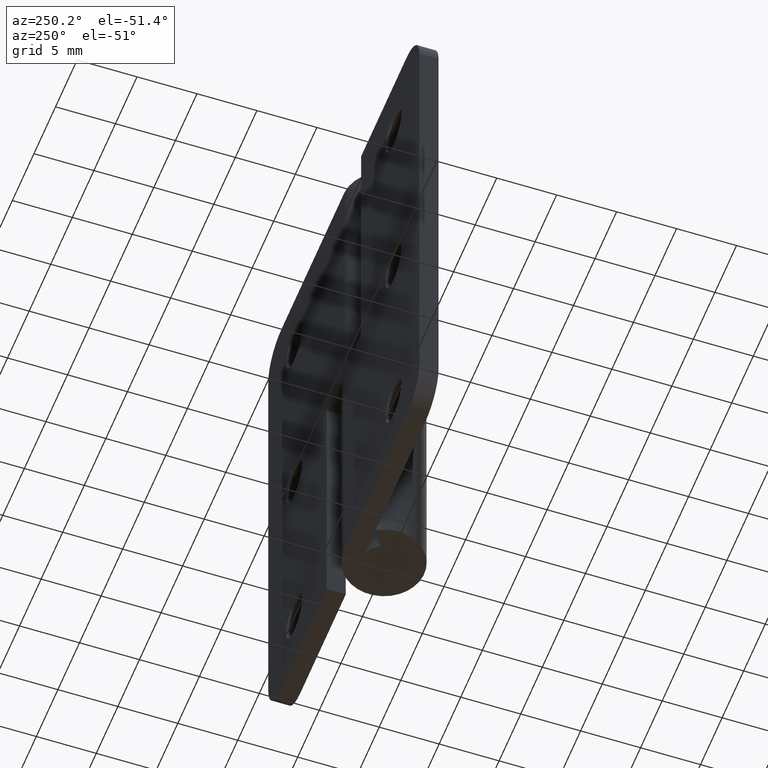
[diagram: clean part render]
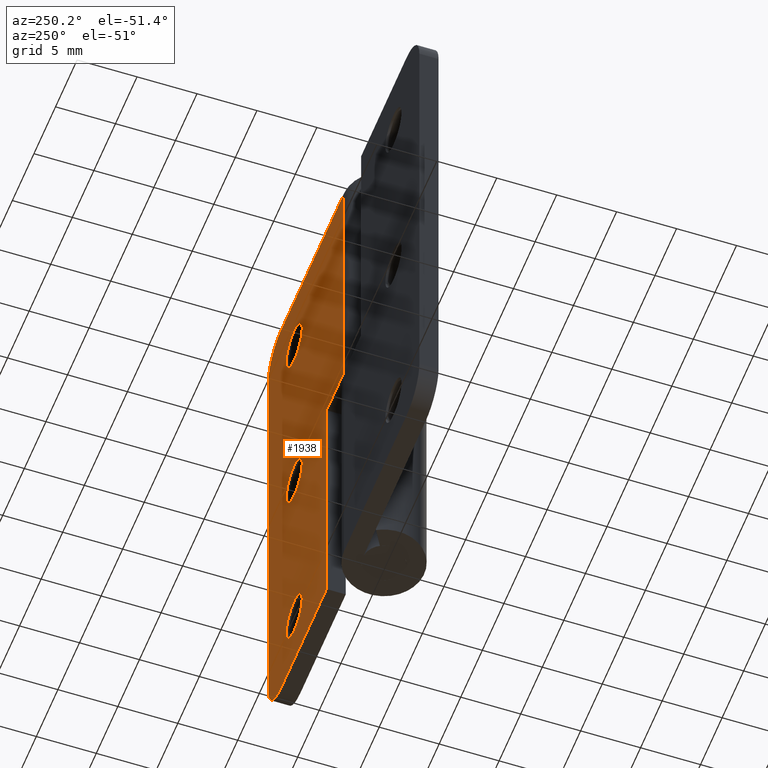
[diagram: same view with one face highlighted and labeled with its STEP entity id]
A machine part, auxiliary view. The second image highlights one B-rep face of the part: STEP entity #1938.
In plain terms, the highlighted face is a freeform B-spline surface patch.
Its self-contained STEP definition (entity closure, byte-faithful):
#676=CARTESIAN_POINT('',(13.337067623767419,3.349998000000000,39.718371334160153));
#677=VERTEX_POINT('',#676);
#683=CARTESIAN_POINT('',(11.500000000000000,3.349998000000000,37.650008000000007));
#684=VERTEX_POINT('',#683);
#685=CARTESIAN_POINT('',(13.337067623767418,3.349998000000000,39.718371334160153));
#686=CARTESIAN_POINT('',(13.350000000000007,3.349998000000000,39.609572621401661));
#687=CARTESIAN_POINT('',(13.350000000000000,3.349998000000000,39.500008000000001));
#688=CARTESIAN_POINT('',(13.350000000000000,3.349998000000000,37.650008000000007));
#689=CARTESIAN_POINT('',(11.500000000000000,3.349998000000000,37.650008000000007));
#697=(BOUNDED_CURVE()B_SPLINE_CURVE(2,(#685,#686,#687,#688,#689),.UNSPECIFIED.,.F.,.U.)B_SPLINE_CURVE_WITH_KNOTS((3,2,3),(0.229562473507338,0.250000000000000,0.500000000000000),.UNSPECIFIED.)CURVE()GEOMETRIC_REPRESENTATION_ITEM()RATIONAL_B_SPLINE_CURVE((0.956026754171605,0.976055948323916,1.0,0.707106781186548,1.0))REPRESENTATION_ITEM(''));
#698=EDGE_CURVE('',#677,#684,#697,.T.);
#700=CARTESIAN_POINT('',(9.653450622924266,3.349998000000000,39.387068201783343));
#701=VERTEX_POINT('',#700);
#702=CARTESIAN_POINT('',(11.500000000000000,3.349998000000000,37.650008000000007));
#703=CARTESIAN_POINT('',(9.759693776370208,3.349997999999999,37.650008000000014));
#704=CARTESIAN_POINT('',(9.653450622924266,3.349998000000000,39.387068201783336));
#712=(BOUNDED_CURVE()B_SPLINE_CURVE(2,(#702,#703,#704),.UNSPECIFIED.,.F.,.U.)B_SPLINE_CURVE_WITH_KNOTS((3,3),(0.500000000000000,0.739332962227545),.UNSPECIFIED.)CURVE()GEOMETRIC_REPRESENTATION_ITEM()RATIONAL_B_SPLINE_CURVE((1.0,0.719603993300063,0.976072041642291))REPRESENTATION_ITEM(''));
#713=EDGE_CURVE('',#684,#701,#712,.T.);
#747=CARTESIAN_POINT('',(11.500000000000000,3.349998000000000,41.350008000000003));
#748=VERTEX_POINT('',#747);
#749=CARTESIAN_POINT('',(9.653450622924266,3.349998000000000,39.387068201783336));
#750=CARTESIAN_POINT('',(9.649999999999999,3.349998000000001,39.443485387820218));
#751=CARTESIAN_POINT('',(9.649999999999999,3.349998000000000,39.500008000000001));
#752=CARTESIAN_POINT('',(9.650000000000000,3.349998000000000,41.350007999999995));
#753=CARTESIAN_POINT('',(11.500000000000000,3.349998000000000,41.350008000000003));
#761=(BOUNDED_CURVE()B_SPLINE_CURVE(2,(#749,#750,#751,#752,#753),.UNSPECIFIED.,.F.,.U.)B_SPLINE_CURVE_WITH_KNOTS((3,2,3),(0.739332962227545,0.750000000000000,1.0),.UNSPECIFIED.)CURVE()GEOMETRIC_REPRESENTATION_ITEM()RATIONAL_B_SPLINE_CURVE((0.976072041642290,0.987502787886484,1.0,0.707106781186548,1.0))REPRESENTATION_ITEM(''));
#762=EDGE_CURVE('',#701,#748,#761,.T.);
#764=CARTESIAN_POINT('',(11.500000000000000,3.349998000000000,41.350008000000003));
#765=CARTESIAN_POINT('',(13.143122872928700,3.349998000000000,41.350008000000010));
#766=CARTESIAN_POINT('',(13.337067623767418,3.349998000000000,39.718371334160153));
#774=(BOUNDED_CURVE()B_SPLINE_CURVE(2,(#764,#765,#766),.UNSPECIFIED.,.F.,.U.)B_SPLINE_CURVE_WITH_KNOTS((3,3),(0.0,0.229562473507338),.UNSPECIFIED.)CURVE()GEOMETRIC_REPRESENTATION_ITEM()RATIONAL_B_SPLINE_CURVE((1.0,0.731050832862632,0.956026754171605))REPRESENTATION_ITEM(''));
#775=EDGE_CURVE('',#748,#677,#774,.T.);
#1020=CARTESIAN_POINT('',(13.337067623767419,3.349998000000000,22.718363334160149));
#1021=VERTEX_POINT('',#1020);
#1027=CARTESIAN_POINT('',(11.500000000000000,3.349998000000000,20.649999999999999));
#1028=VERTEX_POINT('',#1027);
#1029=CARTESIAN_POINT('',(13.337067623767416,3.349998000000000,22.718363334160149));
#1030=CARTESIAN_POINT('',(13.350000000000001,3.349998000000000,22.609564621401656));
#1031=CARTESIAN_POINT('',(13.350000000000000,3.349998000000000,22.500000000000000));
#1032=CARTESIAN_POINT('',(13.350000000000000,3.349998000000000,20.650000000000002));
#1033=CARTESIAN_POINT('',(11.500000000000000,3.349998000000000,20.649999999999999));
#1041=(BOUNDED_CURVE()B_SPLINE_CURVE(2,(#1029,#1030,#1031,#1032,#1033),.UNSPECIFIED.,.F.,.U.)B_SPLINE_CURVE_WITH_KNOTS((3,2,3),(0.229562473507339,0.250000000000000,0.500000000000000),.UNSPECIFIED.)CURVE()GEOMETRIC_REPRESENTATION_ITEM()RATIONAL_B_SPLINE_CURVE((0.956026754171606,0.976055948323917,1.0,0.707106781186548,1.0))REPRESENTATION_ITEM(''));
#1042=EDGE_CURVE('',#1021,#1028,#1041,.T.);
#1044=CARTESIAN_POINT('',(9.653450622924266,3.349998000000000,22.387060201783338));
#1045=VERTEX_POINT('',#1044);
#1046=CARTESIAN_POINT('',(11.500000000000000,3.349998000000000,20.649999999999999));
#1047=CARTESIAN_POINT('',(9.759693776370208,3.349997999999999,20.650000000000002));
#1048=CARTESIAN_POINT('',(9.653450622924266,3.349998000000000,22.387060201783335));
#1056=(BOUNDED_CURVE()B_SPLINE_CURVE(2,(#1046,#1047,#1048),.UNSPECIFIED.,.F.,.U.)B_SPLINE_CURVE_WITH_KNOTS((3,3),(0.500000000000000,0.739332962227545),.UNSPECIFIED.)CURVE()GEOMETRIC_REPRESENTATION_ITEM()RATIONAL_B_SPLINE_CURVE((1.0,0.719603993300063,0.976072041642291))REPRESENTATION_ITEM(''));
#1057=EDGE_CURVE('',#1028,#1045,#1056,.T.);
#1091=CARTESIAN_POINT('',(11.500000000000000,3.349998000000000,24.350000000000001));
#1092=VERTEX_POINT('',#1091);
#1093=CARTESIAN_POINT('',(9.653450622924266,3.349998000000000,22.387060201783338));
#1094=CARTESIAN_POINT('',(9.649999999999999,3.349997999999999,22.443477387820213));
#1095=CARTESIAN_POINT('',(9.649999999999999,3.349998000000000,22.500000000000000));
#1096=CARTESIAN_POINT('',(9.650000000000000,3.349998000000000,24.350000000000009));
#1097=CARTESIAN_POINT('',(11.500000000000000,3.349998000000000,24.350000000000001));
#1105=(BOUNDED_CURVE()B_SPLINE_CURVE(2,(#1093,#1094,#1095,#1096,#1097),.UNSPECIFIED.,.F.,.U.)B_SPLINE_CURVE_WITH_KNOTS((3,2,3),(0.739332962227545,0.750000000000000,1.0),.UNSPECIFIED.)CURVE()GEOMETRIC_REPRESENTATION_ITEM()RATIONAL_B_SPLINE_CURVE((0.976072041642290,0.987502787886484,1.0,0.707106781186548,1.0))REPRESENTATION_ITEM(''));
#1106=EDGE_CURVE('',#1045,#1092,#1105,.T.);
#1108=CARTESIAN_POINT('',(11.500000000000000,3.349998000000000,24.350000000000001));
#1109=CARTESIAN_POINT('',(13.143122872928711,3.349997999999999,24.349999999999998));
#1110=CARTESIAN_POINT('',(13.337067623767416,3.349998000000000,22.718363334160149));
#1118=(BOUNDED_CURVE()B_SPLINE_CURVE(2,(#1108,#1109,#1110),.UNSPECIFIED.,.F.,.U.)B_SPLINE_CURVE_WITH_KNOTS((3,3),(0.0,0.229562473507339),.UNSPECIFIED.)CURVE()GEOMETRIC_REPRESENTATION_ITEM()RATIONAL_B_SPLINE_CURVE((1.0,0.731050832862631,0.956026754171606))REPRESENTATION_ITEM(''));
#1119=EDGE_CURVE('',#1092,#1021,#1118,.T.);
#1364=CARTESIAN_POINT('',(13.337067623767419,3.349998000000000,5.718363334160145));
#1365=VERTEX_POINT('',#1364);
#1371=CARTESIAN_POINT('',(11.500000000000000,3.349998000000000,3.650000000000000));
#1372=VERTEX_POINT('',#1371);
#1373=CARTESIAN_POINT('',(13.337067623767423,3.349998000000000,5.718363334160145));
#1374=CARTESIAN_POINT('',(13.350000000000007,3.349998000000000,5.609564621401654));
#1375=CARTESIAN_POINT('',(13.350000000000000,3.349998000000000,5.500000000000000));
#1376=CARTESIAN_POINT('',(13.350000000000000,3.349998000000000,3.650000000000001));
#1377=CARTESIAN_POINT('',(11.500000000000000,3.349998000000000,3.650000000000000));
#1385=(BOUNDED_CURVE()B_SPLINE_CURVE(2,(#1373,#1374,#1375,#1376,#1377),.UNSPECIFIED.,.F.,.U.)B_SPLINE_CURVE_WITH_KNOTS((3,2,3),(0.229562473507338,0.250000000000000,0.500000000000000),.UNSPECIFIED.)CURVE()GEOMETRIC_REPRESENTATION_ITEM()RATIONAL_B_SPLINE_CURVE((0.956026754171606,0.976055948323916,1.0,0.707106781186548,1.0))REPRESENTATION_ITEM(''));
#1386=EDGE_CURVE('',#1365,#1372,#1385,.T.);
#1388=CARTESIAN_POINT('',(9.653450622924266,3.349998000000000,5.387060201783338));
#1389=VERTEX_POINT('',#1388);
#1390=CARTESIAN_POINT('',(11.500000000000000,3.349998000000000,3.650000000000000));
#1391=CARTESIAN_POINT('',(9.759693776370208,3.349997999999999,3.650000000000000));
#1392=CARTESIAN_POINT('',(9.653450622924266,3.349998000000000,5.387060201783338));
#1400=(BOUNDED_CURVE()B_SPLINE_CURVE(2,(#1390,#1391,#1392),.UNSPECIFIED.,.F.,.U.)B_SPLINE_CURVE_WITH_KNOTS((3,3),(0.500000000000000,0.739332962227545),.UNSPECIFIED.)CURVE()GEOMETRIC_REPRESENTATION_ITEM()RATIONAL_B_SPLINE_CURVE((1.0,0.719603993300063,0.976072041642291))REPRESENTATION_ITEM(''));
#1401=EDGE_CURVE('',#1372,#1389,#1400,.T.);
#1435=CARTESIAN_POINT('',(11.500000000000000,3.349998000000000,7.350000000000000));
#1436=VERTEX_POINT('',#1435);
#1437=CARTESIAN_POINT('',(9.653450622924266,3.349998000000000,5.387060201783338));
#1438=CARTESIAN_POINT('',(9.649999999999999,3.349998000000001,5.443477387820219));
#1439=CARTESIAN_POINT('',(9.649999999999999,3.349998000000000,5.500000000000000));
#1440=CARTESIAN_POINT('',(9.650000000000000,3.349998000000000,7.350000000000000));
#1441=CARTESIAN_POINT('',(11.500000000000000,3.349998000000000,7.350000000000000));
#1449=(BOUNDED_CURVE()B_SPLINE_CURVE(2,(#1437,#1438,#1439,#1440,#1441),.UNSPECIFIED.,.F.,.U.)B_SPLINE_CURVE_WITH_KNOTS((3,2,3),(0.739332962227545,0.750000000000000,1.0),.UNSPECIFIED.)CURVE()GEOMETRIC_REPRESENTATION_ITEM()RATIONAL_B_SPLINE_CURVE((0.976072041642290,0.987502787886484,1.0,0.707106781186548,1.0))REPRESENTATION_ITEM(''));
#1450=EDGE_CURVE('',#1389,#1436,#1449,.T.);
#1452=CARTESIAN_POINT('',(11.500000000000000,3.349998000000000,7.350000000000000));
#1453=CARTESIAN_POINT('',(13.143122872928707,3.349998000000000,7.350000000000001));
#1454=CARTESIAN_POINT('',(13.337067623767414,3.349998000000000,5.718363334160145));
#1462=(BOUNDED_CURVE()B_SPLINE_CURVE(2,(#1452,#1453,#1454),.UNSPECIFIED.,.F.,.U.)B_SPLINE_CURVE_WITH_KNOTS((3,3),(0.0,0.229562473507338),.UNSPECIFIED.)CURVE()GEOMETRIC_REPRESENTATION_ITEM()RATIONAL_B_SPLINE_CURVE((1.0,0.731050832862631,0.956026754171606))REPRESENTATION_ITEM(''));
#1463=EDGE_CURVE('',#1436,#1365,#1462,.T.);
#1483=CARTESIAN_POINT('',(14.500000000000000,3.349998000000000,45.000008000000001));
#1484=VERTEX_POINT('',#1483);
#1485=CARTESIAN_POINT('',(17.500000000000000,3.349998000000000,42.000008000000037));
#1486=VERTEX_POINT('',#1485);
#1487=CARTESIAN_POINT('',(14.500000000000000,3.349998000000000,45.000008000000051));
#1488=CARTESIAN_POINT('',(17.499999999999996,3.349998000000000,45.000008000000058));
#1489=CARTESIAN_POINT('',(17.500000000000000,3.349998000000000,42.000008000000037));
#1497=(BOUNDED_CURVE()B_SPLINE_CURVE(2,(#1487,#1488,#1489),.UNSPECIFIED.,.F.,.U.)CURVE()GEOMETRIC_REPRESENTATION_ITEM()QUASI_UNIFORM_CURVE()RATIONAL_B_SPLINE_CURVE((1.0,0.707106781186548,1.0))REPRESENTATION_ITEM(''));
#1498=EDGE_CURVE('',#1484,#1486,#1497,.T.);
#1544=CARTESIAN_POINT('',(17.500000000000000,3.349998000000000,3.0));
#1545=VERTEX_POINT('',#1544);
#1546=CARTESIAN_POINT('',(14.500000000000000,3.349998000000000,0.0));
#1547=VERTEX_POINT('',#1546);
#1548=CARTESIAN_POINT('',(17.500000000000000,3.349998000000000,3.0));
#1549=CARTESIAN_POINT('',(17.499999999999996,3.349998000000000,0.0));
#1550=CARTESIAN_POINT('',(14.500000000000000,3.349998000000000,0.0));
#1558=(BOUNDED_CURVE()B_SPLINE_CURVE(2,(#1548,#1549,#1550),.UNSPECIFIED.,.F.,.U.)CURVE()GEOMETRIC_REPRESENTATION_ITEM()QUASI_UNIFORM_CURVE()RATIONAL_B_SPLINE_CURVE((1.0,0.707106781186548,1.0))REPRESENTATION_ITEM(''));
#1559=EDGE_CURVE('',#1545,#1547,#1558,.T.);
#1598=CARTESIAN_POINT('',(4.0,3.349998000000000,22.500000000000000));
#1599=VERTEX_POINT('',#1598);
#1605=CARTESIAN_POINT('',(4.0,3.349998000000000,0.0));
#1606=VERTEX_POINT('',#1605);
#1607=CARTESIAN_POINT('',(4.0,3.349998000000000,22.500000000000000));
#1608=CARTESIAN_POINT('',(4.0,3.349998000000000,0.0));
#1609=QUASI_UNIFORM_CURVE('',1,(#1607,#1608),.UNSPECIFIED.,.F.,.U.);
#1610=EDGE_CURVE('',#1599,#1606,#1609,.T.);
#1634=CARTESIAN_POINT('',(0.003660600504212,3.349998000000000,22.500000000000000));
#1635=VERTEX_POINT('',#1634);
#1641=CARTESIAN_POINT('',(0.003660600504212,3.349998000000000,22.500000000000000));
#1642=CARTESIAN_POINT('',(4.0,3.349998000000000,22.500000000000000));
#1643=QUASI_UNIFORM_CURVE('',1,(#1641,#1642),.UNSPECIFIED.,.F.,.U.);
#1644=EDGE_CURVE('',#1635,#1599,#1643,.T.);
#1717=CARTESIAN_POINT('',(0.003660600504212,3.349998000000000,45.000008000000001));
#1718=VERTEX_POINT('',#1717);
#1719=CARTESIAN_POINT('',(0.003660600504212,3.349998000000000,45.000008000000001));
#1720=CARTESIAN_POINT('',(14.500000000000000,3.349998000000000,45.000008000000001));
#1721=QUASI_UNIFORM_CURVE('',1,(#1719,#1720),.UNSPECIFIED.,.F.,.U.);
#1722=EDGE_CURVE('',#1718,#1484,#1721,.T.);
#1779=CARTESIAN_POINT('',(4.0,3.349998000000000,0.0));
#1780=CARTESIAN_POINT('',(14.500000000000000,3.349998000000000,0.0));
#1781=QUASI_UNIFORM_CURVE('',1,(#1779,#1780),.UNSPECIFIED.,.F.,.U.);
#1782=EDGE_CURVE('',#1606,#1547,#1781,.T.);
#1892=CARTESIAN_POINT('',(17.500000000000000,3.349998000000000,3.0));
#1893=CARTESIAN_POINT('',(17.500000000000000,3.349998000000000,42.000008000000037));
#1894=QUASI_UNIFORM_CURVE('',1,(#1892,#1893),.UNSPECIFIED.,.F.,.U.);
#1895=EDGE_CURVE('',#1545,#1486,#1894,.T.);
#1901=CARTESIAN_POINT('',(-0.870281518589301,3.349998000000000,47.247757889953377));
#1902=CARTESIAN_POINT('',(-0.870281518589301,3.349998000000000,-2.247751499279064));
#1903=CARTESIAN_POINT('',(18.373942588381912,3.349998000000000,47.247757889953377));
#1904=CARTESIAN_POINT('',(18.373942588381912,3.349998000000000,-2.247751499279064));
#1905=B_SPLINE_SURFACE_WITH_KNOTS('',1,1,((#1901,#1903),(#1902,#1904)),.UNSPECIFIED.,.F.,.F.,.U.,(2,2),(2,2),(0.0,49.495509389232453),(0.0,19.244224106971210),.UNSPECIFIED.);
#1906=ORIENTED_EDGE('',*,*,#1895,.F.);
#1907=ORIENTED_EDGE('',*,*,#1559,.T.);
#1908=ORIENTED_EDGE('',*,*,#1782,.F.);
#1909=ORIENTED_EDGE('',*,*,#1610,.F.);
#1910=ORIENTED_EDGE('',*,*,#1644,.F.);
#1911=CARTESIAN_POINT('',(0.003660600504212,3.349998000000000,22.500000000000000));
#1912=CARTESIAN_POINT('',(0.003660600504212,3.349998000000000,45.000008000000001));
#1913=QUASI_UNIFORM_CURVE('',1,(#1911,#1912),.UNSPECIFIED.,.F.,.U.);
#1914=EDGE_CURVE('',#1635,#1718,#1913,.T.);
#1915=ORIENTED_EDGE('',*,*,#1914,.T.);
#1916=ORIENTED_EDGE('',*,*,#1722,.T.);
#1917=ORIENTED_EDGE('',*,*,#1498,.T.);
#1918=EDGE_LOOP('',(#1906,#1907,#1908,#1909,#1910,#1915,#1916,#1917));
#1919=FACE_OUTER_BOUND('',#1918,.T.);
#1920=ORIENTED_EDGE('',*,*,#1401,.F.);
#1921=ORIENTED_EDGE('',*,*,#1386,.F.);
#1922=ORIENTED_EDGE('',*,*,#1463,.F.);
#1923=ORIENTED_EDGE('',*,*,#1450,.F.);
#1924=EDGE_LOOP('',(#1920,#1921,#1922,#1923));
#1925=FACE_BOUND('',#1924,.T.);
#1926=ORIENTED_EDGE('',*,*,#1057,.F.);
#1927=ORIENTED_EDGE('',*,*,#1042,.F.);
#1928=ORIENTED_EDGE('',*,*,#1119,.F.);
#1929=ORIENTED_EDGE('',*,*,#1106,.F.);
#1930=EDGE_LOOP('',(#1926,#1927,#1928,#1929));
#1931=FACE_BOUND('',#1930,.T.);
#1932=ORIENTED_EDGE('',*,*,#713,.F.);
#1933=ORIENTED_EDGE('',*,*,#698,.F.);
#1934=ORIENTED_EDGE('',*,*,#775,.F.);
#1935=ORIENTED_EDGE('',*,*,#762,.F.);
#1936=EDGE_LOOP('',(#1932,#1933,#1934,#1935));
#1937=FACE_BOUND('',#1936,.T.);
#1938=ADVANCED_FACE('',(#1919,#1925,#1931,#1937),#1905,.F.);